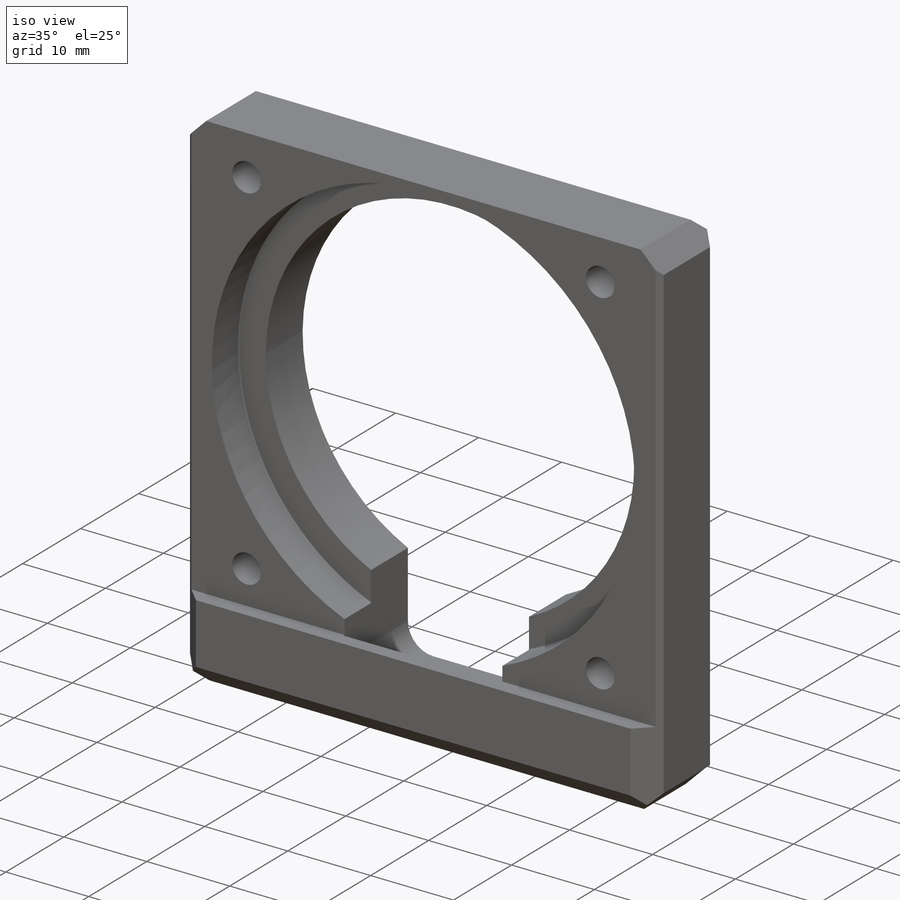
[diagram: iso view]
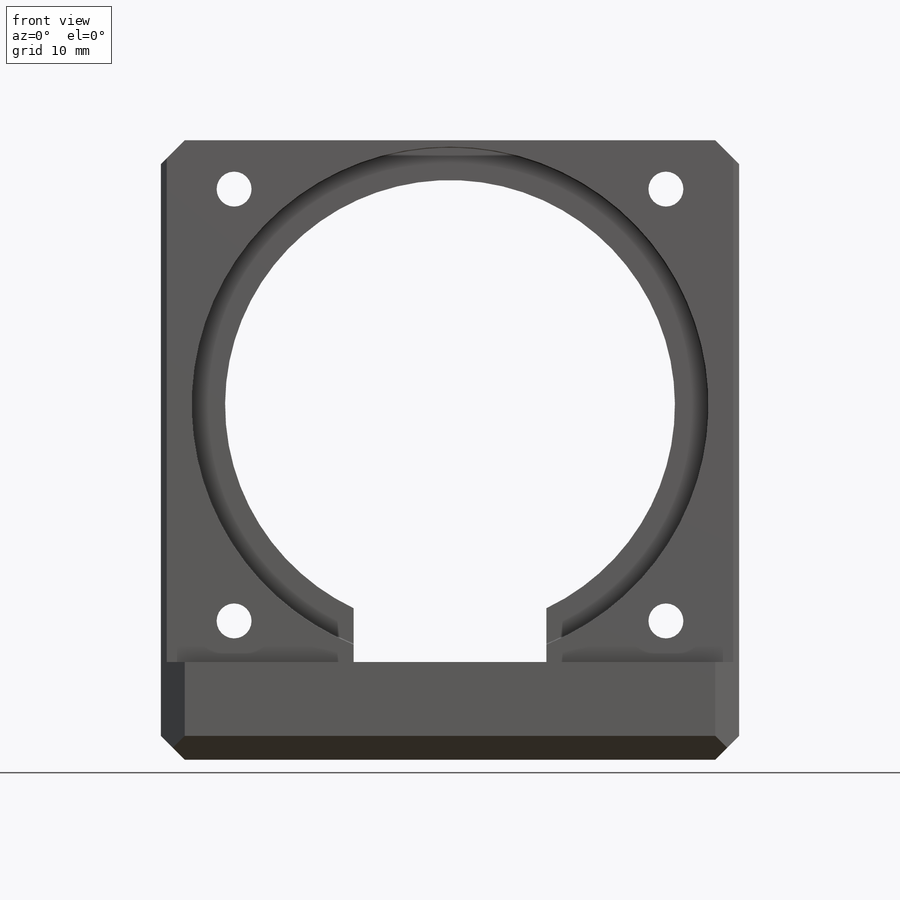
[diagram: front view]
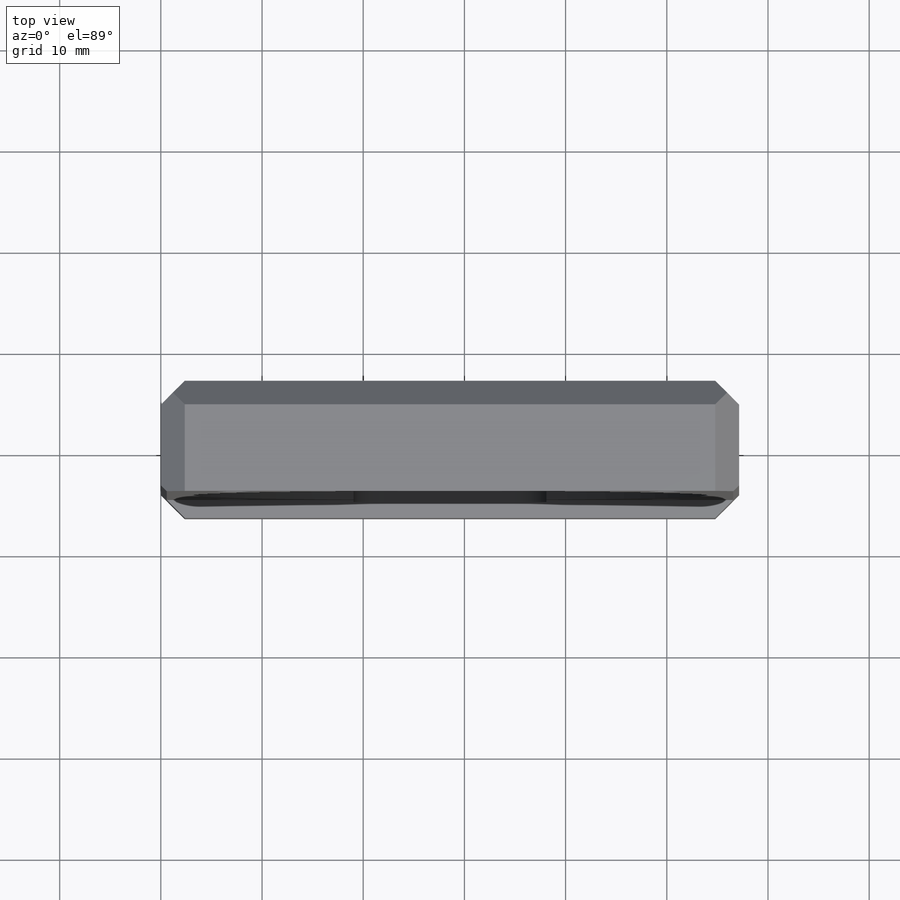
[diagram: top view]
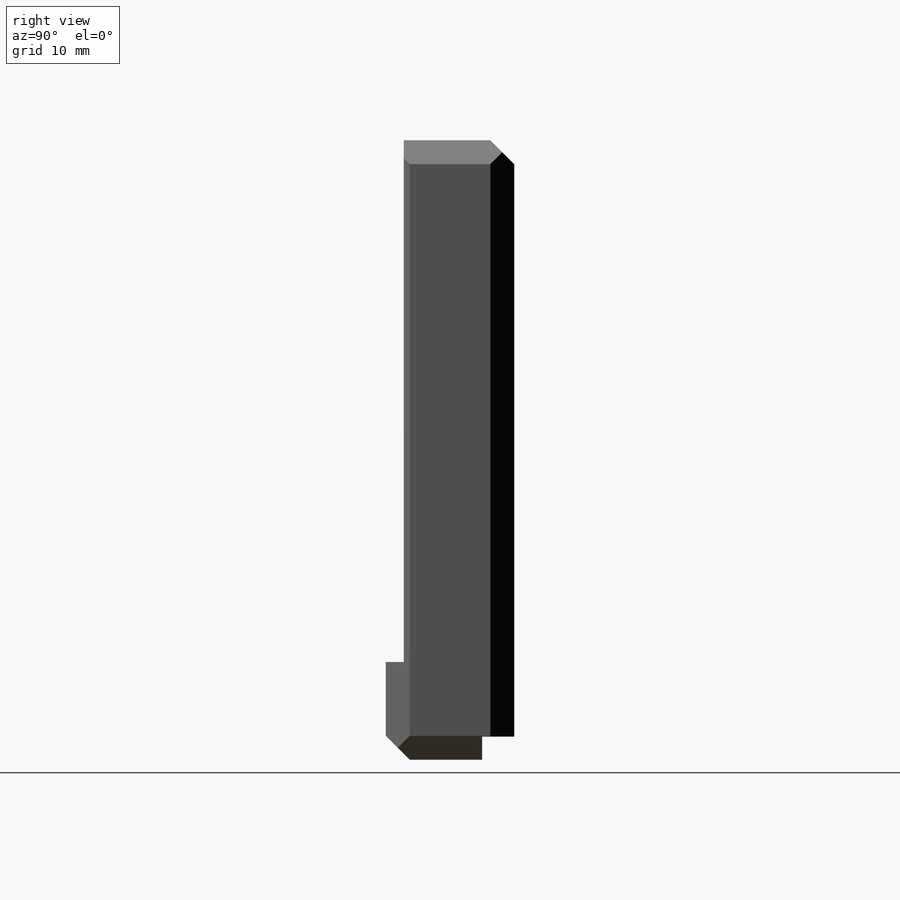
[diagram: right view]
SOLIDWORKS PART (.sldprt)
format: sldprt  version: not decoded by parser v0  size: 386,560 bytes
history: native  units: mm
features: sketch x11, cut_extrude x4, thread x4, hole x3, chamfer x2, material x1, extrude x1, fillet x1 + 1 further entry (+13 scaffold rows collapsed)
feature tree (41):
  scaffold x13  (default folders/planes/origin — collapsed)
  material  "304 SSTL"
  "Origin"  ID=-1
  sketch  "Sketch1"  dims[D1=57.15mm D2=61.214mm]
  extrude  "Boss-Extrude1"  Depth=12.7mm
  sketch  "Sketch2"  dims[D1=51.562mm]
  cut_extrude  "Cut-Extrude1"  Depth=1.778mm
  hole  "1 (1) Diameter Hole1"  Diameter=44.45mm Depth=10.922mm
  sketch  "Sketch4"  dims[D1=25.4mm]
  sketch  "Sketch5"  dims[hole-wizard template sketch: 59 standard entries collapsed; hole parameters kept: c18.Thru Hole Dia.=44.45mm c18.Thru Hole Depth=10.922mm]
  sketch  "Sketch6"  dims[D3=3.048mm D1=19.05mm D2=3.9624mm]
  cut_extrude  "Cut-Extrude2"  Depth=11.1252mm
  hole  "#14 (0.182) Diameter Hole1"  Diameter=4.6228mm Depth=13.97mm
  sketch  "Sketch9"
  sketch  "Sketch8"  dims[hole-wizard template sketch: 46 standard entries collapsed; hole parameters kept: c15.Hole Dia.=4.6228mm c15.Hole Depth=13.97mm c15.D3=~14.816244mm c15.Drill Angle=118.0deg]
  sketch  "Sketch10"  dims[D1=51.054mm]
  cut_extrude  "Cut-Extrude3"  Depth=4.572mm
  chamfer  "Chamfer1"  Distance=2.3622mm Angle=45deg
  hole  "#8-32 Tapped Hole1"  Diameter=3.4544mm Depth=10.922mm
  sketch  "Sketch12"  dims[D1=42.672mm]
  sketch  "Sketch11"  dims[hole-wizard template sketch: 60 standard entries collapsed; hole parameters kept: c18.Thru Tap Drill Depth=10.922mm]
  thread  "Hole Thread1"  Diameter=4.1656mm  [1 undecoded]
  thread  "Hole Thread2"  Diameter=4.1656mm  [1 undecoded]
  thread  "Hole Thread3"  Diameter=4.1656mm  [1 undecoded]
  thread  "Hole Thread4"  Diameter=4.1656mm  [1 undecoded]
  sketch  "Sketch13"  dims[D1=3.175mm]
  cut_extrude  "Cut-Extrude4"  Depth=2.286mm
  fillet  "Fillet1"  Radius=0.127mm
  chamfer  "Chamfer2"  Distance=2.3622mm Angle=45deg
decode coverage: 25 of 26 modeling features carry decoded parameters; 1 rows unclassified (native names shown)
note: ~ marks probable driven/reference dimensions
note: 4 parameter values undecoded
note: suppression state not decoded; provenance and decode notes live in map.json
